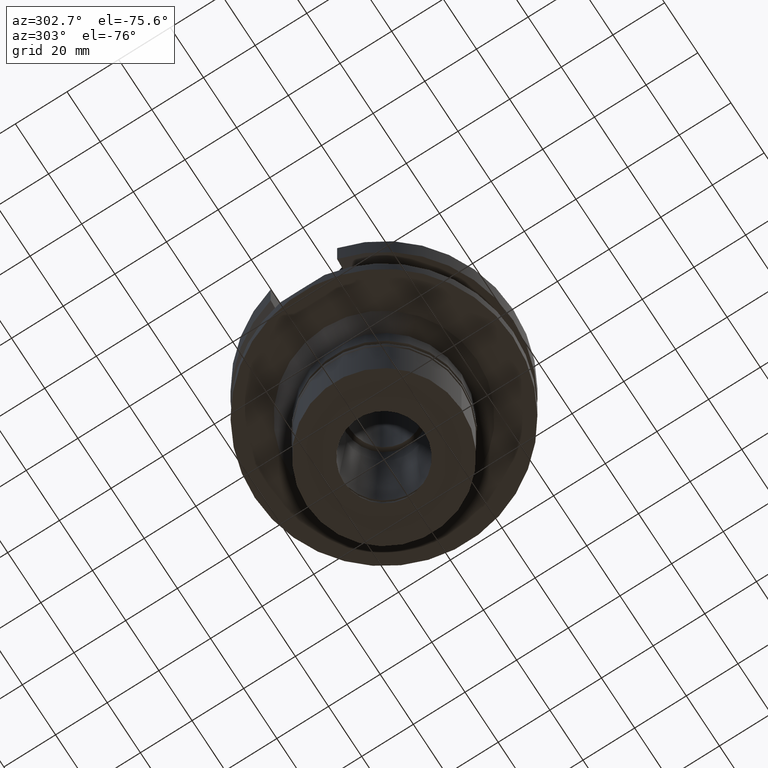
[diagram: clean part render]
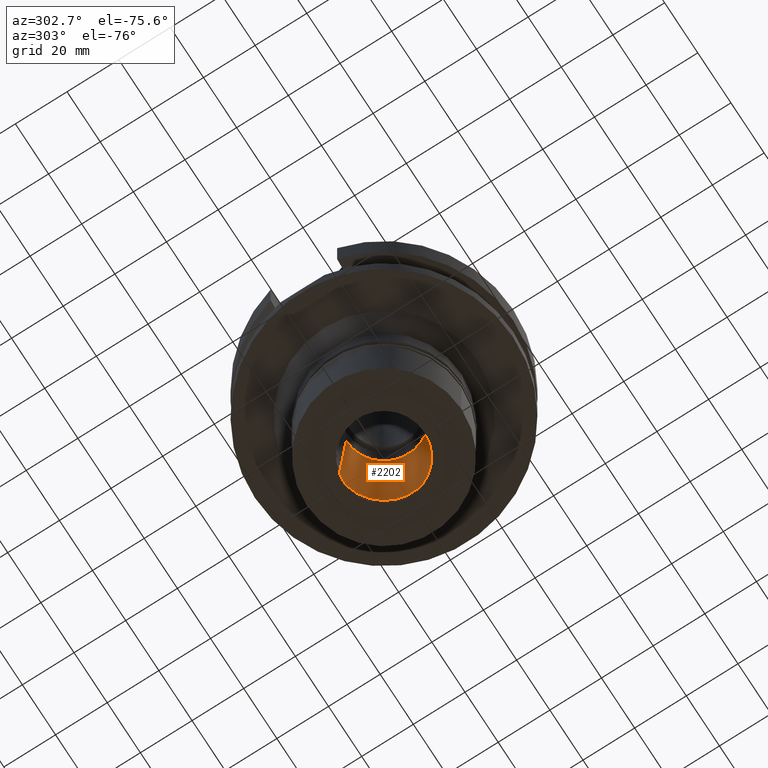
[diagram: same view with one face highlighted and labeled with its STEP entity id]
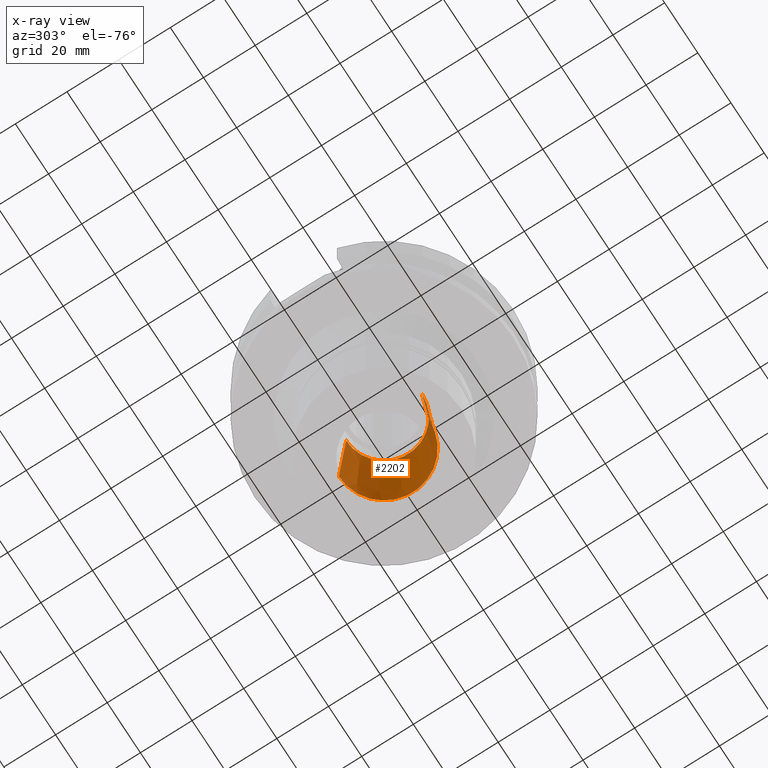
[diagram: x-ray of the same camera — body ghosted, the highlighted face saturated]
A machine part, auxiliary view. The second image highlights one B-rep face of the part: STEP entity #2202.
The next image is the same camera in x-ray: the body ghosted, the highlighted face saturated — about 4% of this face is hidden behind the body in this view.
In plain terms, the highlighted conical surface has half-angle 4 deg.
Its self-contained STEP definition (entity closure, byte-faithful):
#36 = DIRECTION ( 'NONE',  ( 0.0000000000000000000, 0.06975647374412166646, 0.9975640502598245307 ) ) ;
#212 = CARTESIAN_POINT ( 'NONE',  ( 0.0000000000000000000, 0.0000000000000000000, -37.79999999999999716 ) ) ;
#276 = VERTEX_POINT ( 'NONE', #2277 ) ;
#319 = DIRECTION ( 'NONE',  ( 0.0000000000000000000, -0.06975647374412166646, 0.9975640502598245307 ) ) ;
#351 = EDGE_CURVE ( 'NONE', #2010, #276, #1194, .T. ) ;
#458 = DIRECTION ( 'NONE',  ( 0.0000000000000000000, -1.000000000000000000, 0.0000000000000000000 ) ) ;
#493 = CARTESIAN_POINT ( 'NONE',  ( 0.0000000000000000000, 0.0000000000000000000, -58.14999999999999858 ) ) ;
#527 = CIRCLE ( 'NONE', #967, 17.50000000000000000 ) ;
#561 = LINE ( 'NONE', #1802, #1670 ) ;
#649 = ORIENTED_EDGE ( 'NONE', *, *, #1217, .T. ) ;
#704 = ORIENTED_EDGE ( 'NONE', *, *, #2361, .F. ) ;
#723 = DIRECTION ( 'NONE',  ( 0.0000000000000000000, 0.0000000000000000000, -1.000000000000000000 ) ) ;
#737 = VERTEX_POINT ( 'NONE', #2646 ) ;
#779 = CIRCLE ( 'NONE', #874, 14.65397875389999882 ) ;
#786 = FACE_OUTER_BOUND ( 'NONE', #912, .T. ) ;
#798 = ORIENTED_EDGE ( 'NONE', *, *, #2067, .T. ) ;
#874 = AXIS2_PLACEMENT_3D ( 'NONE', #212, #2301, #458 ) ;
#912 = EDGE_LOOP ( 'NONE', ( #649, #1916, #798, #704 ) ) ;
#967 = AXIS2_PLACEMENT_3D ( 'NONE', #1169, #1284, #2976 ) ;
#1000 = DIRECTION ( 'NONE',  ( 0.0000000000000000000, -1.000000000000000000, 0.0000000000000000000 ) ) ;
#1169 = CARTESIAN_POINT ( 'NONE',  ( 0.0000000000000000000, 0.0000000000000000000, -78.50000000000000000 ) ) ;
#1194 = LINE ( 'NONE', #2140, #2401 ) ;
#1217 = EDGE_CURVE ( 'NONE', #2782, #2010, #527, .T. ) ;
#1284 = DIRECTION ( 'NONE',  ( 0.0000000000000000000, 0.0000000000000000000, -1.000000000000000000 ) ) ;
#1643 = CARTESIAN_POINT ( 'NONE',  ( 0.0000000000000000000, -17.50000000000000000, -78.50000000000000000 ) ) ;
#1670 = VECTOR ( 'NONE', #319, 1000.000000000000114 ) ;
#1802 = CARTESIAN_POINT ( 'NONE',  ( 0.0000000000000000000, 17.50000000000000000, -78.50000000000000000 ) ) ;
#1912 = CARTESIAN_POINT ( 'NONE',  ( 0.0000000000000000000, 17.50000000000000000, -78.50000000000000000 ) ) ;
#1916 = ORIENTED_EDGE ( 'NONE', *, *, #351, .T. ) ;
#1957 = AXIS2_PLACEMENT_3D ( 'NONE', #493, #723, #1000 ) ;
#2010 = VERTEX_POINT ( 'NONE', #1643 ) ;
#2067 = EDGE_CURVE ( 'NONE', #276, #737, #779, .T. ) ;
#2140 = CARTESIAN_POINT ( 'NONE',  ( 0.0000000000000000000, -17.50000000000000000, -78.50000000000000000 ) ) ;
#2202 = ADVANCED_FACE ( 'NONE', ( #786 ), #2451, .F. ) ;
#2277 = CARTESIAN_POINT ( 'NONE',  ( 0.0000000000000000000, -14.65397875389999882, -37.79999999999999716 ) ) ;
#2301 = DIRECTION ( 'NONE',  ( 0.0000000000000000000, 0.0000000000000000000, 1.000000000000000000 ) ) ;
#2361 = EDGE_CURVE ( 'NONE', #2782, #737, #561, .T. ) ;
#2401 = VECTOR ( 'NONE', #36, 1000.000000000000114 ) ;
#2451 = CONICAL_SURFACE ( 'NONE', #1957, 16.07698937694999941, 0.06981317007975955391 ) ;
#2646 = CARTESIAN_POINT ( 'NONE',  ( 0.0000000000000000000, 14.65397875389999882, -37.79999999999999716 ) ) ;
#2782 = VERTEX_POINT ( 'NONE', #1912 ) ;
#2976 = DIRECTION ( 'NONE',  ( 0.0000000000000000000, 1.000000000000000000, 0.0000000000000000000 ) ) ;